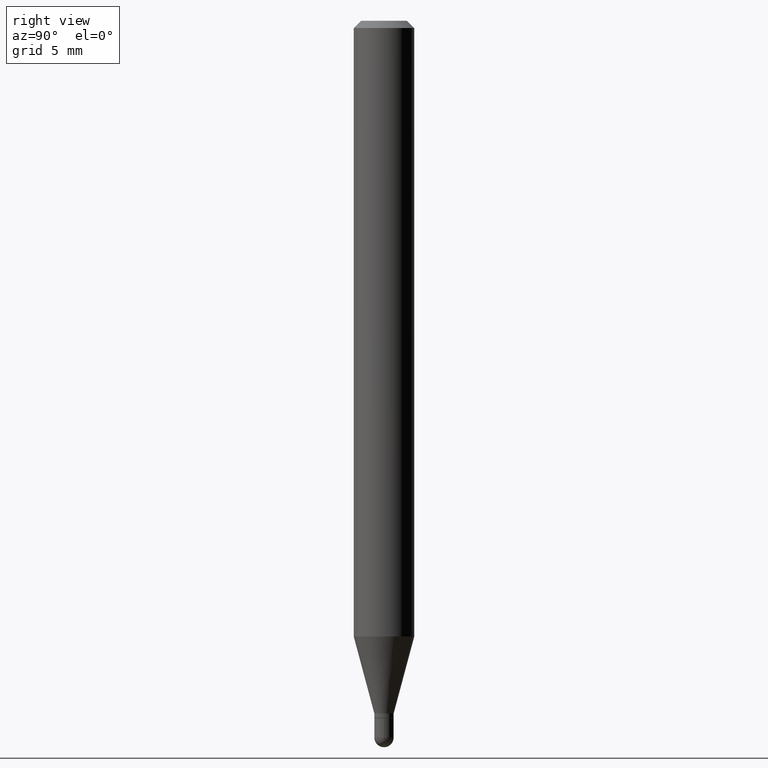
[diagram: clean part render]
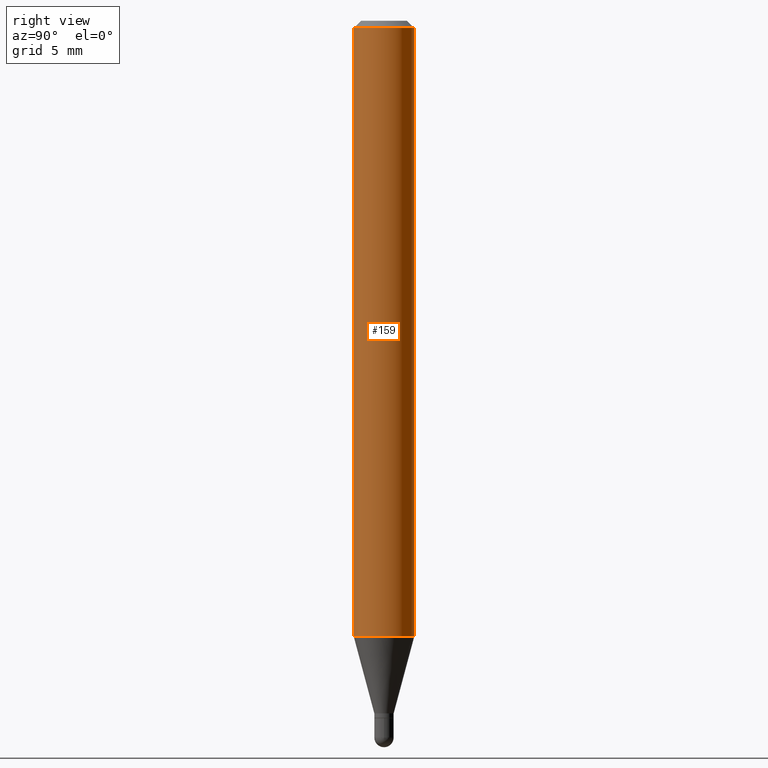
[diagram: same view with one face highlighted and labeled with its STEP entity id]
A machine part, right view. The second image highlights one B-rep face of the part: STEP entity #159.
In plain terms, the highlighted cylindrical surface (edge-blend (fillet) strip) has radius 1.5875 mm, axis along (-0, 0, 1).
Its self-contained STEP definition (entity closure, byte-faithful):
#1 = FACE_OUTER_BOUND ( 'NONE', #425, .T. ) ;
#3 = ORIENTED_EDGE ( 'NONE', *, *, #339, .T. ) ;
#6 = CYLINDRICAL_SURFACE ( 'NONE', #8, 0.06250000000000000000 ) ;
#8 = AXIS2_PLACEMENT_3D ( 'NONE', #75, #351, #357 ) ;
#32 = AXIS2_PLACEMENT_3D ( 'NONE', #293, #54, #495 ) ;
#38 = CARTESIAN_POINT ( 'NONE',  ( 4.440892098500938748E-16, 0.06249999999999995143, -0.01500000000000022669 ) ) ;
#43 = EDGE_CURVE ( 'NONE', #182, #509, #508, .T. ) ;
#53 = CARTESIAN_POINT ( 'NONE',  ( 4.440892098500625669E-16, 0.06250000000000000000, -2.182189585385353959E-16 ) ) ;
#54 = DIRECTION ( 'NONE',  ( -2.445453445222057768E-29, 3.491503336616566334E-15, 1.000000000000000000 ) ) ;
#75 = CARTESIAN_POINT ( 'NONE',  ( 0.000000000000000000, 0.000000000000000000, 0.000000000000000000 ) ) ;
#91 = DIRECTION ( 'NONE',  ( -2.445453445222058048E-29, 3.491503336616566334E-15, 1.000000000000000000 ) ) ;
#111 = CARTESIAN_POINT ( 'NONE',  ( -4.364351673553605587E-16, -0.06250000000000445477, -1.271387840678323000 ) ) ;
#124 = DIRECTION ( 'NONE',  ( -2.445453445222057768E-29, 3.491503336616566334E-15, 1.000000000000000000 ) ) ;
#143 = CARTESIAN_POINT ( 'NONE',  ( -4.364351673553916201E-16, -0.06250000000000000000, 2.182189585385353959E-16 ) ) ;
#144 = VERTEX_POINT ( 'NONE', #38 ) ;
#145 = CIRCLE ( 'NONE', #32, 0.06250000000000000000 ) ;
#151 = ORIENTED_EDGE ( 'NONE', *, *, #43, .F. ) ;
#159 = ADVANCED_FACE ( 'NONE', ( #1 ), #6, .T. ) ;
#168 = AXIS2_PLACEMENT_3D ( 'NONE', #409, #124, #368 ) ;
#182 = VERTEX_POINT ( 'NONE', #111 ) ;
#252 = CARTESIAN_POINT ( 'NONE',  ( 4.440892098500934804E-16, 0.06249999999999554523, -1.271387840678323444 ) ) ;
#257 = VECTOR ( 'NONE', #385, 39.37007874015748143 ) ;
#276 = ORIENTED_EDGE ( 'NONE', *, *, #417, .F. ) ;
#285 = EDGE_CURVE ( 'NONE', #289, #144, #443, .T. ) ;
#286 = CIRCLE ( 'NONE', #168, 0.06250000000000000000 ) ;
#289 = VERTEX_POINT ( 'NONE', #252 ) ;
#293 = CARTESIAN_POINT ( 'NONE',  ( 3.668180167833088946E-31, -5.237255004924852262E-17, -0.01500000000000000812 ) ) ;
#311 = VECTOR ( 'NONE', #91, 39.37007874015748143 ) ;
#339 = EDGE_CURVE ( 'NONE', #182, #289, #286, .T. ) ;
#351 = DIRECTION ( 'NONE',  ( -2.445453445222057768E-29, 3.491503336616566334E-15, 1.000000000000000000 ) ) ;
#357 = DIRECTION ( 'NONE',  ( -6.982962677686265922E-15, -1.000000000000000000, 3.491503336616566334E-15 ) ) ;
#360 = ORIENTED_EDGE ( 'NONE', *, *, #285, .T. ) ;
#368 = DIRECTION ( 'NONE',  ( -6.982962677686265922E-15, -1.000000000000000000, 4.370956789862821150E-15 ) ) ;
#377 = CARTESIAN_POINT ( 'NONE',  ( -4.364351673553912750E-16, -0.06250000000000005551, -0.01499999999999979128 ) ) ;
#385 = DIRECTION ( 'NONE',  ( -2.445453445222058048E-29, 3.491503336616566334E-15, 1.000000000000000000 ) ) ;
#409 = CARTESIAN_POINT ( 'NONE',  ( 3.109119775200238315E-29, -4.439054887862097142E-15, -1.271387840678323222 ) ) ;
#417 = EDGE_CURVE ( 'NONE', #509, #144, #145, .T. ) ;
#425 = EDGE_LOOP ( 'NONE', ( #3, #360, #276, #151 ) ) ;
#443 = LINE ( 'NONE', #53, #311 ) ;
#495 = DIRECTION ( 'NONE',  ( -6.982962677686265922E-15, -1.000000000000000000, 3.483106191921935554E-15 ) ) ;
#508 = LINE ( 'NONE', #143, #257 ) ;
#509 = VERTEX_POINT ( 'NONE', #377 ) ;